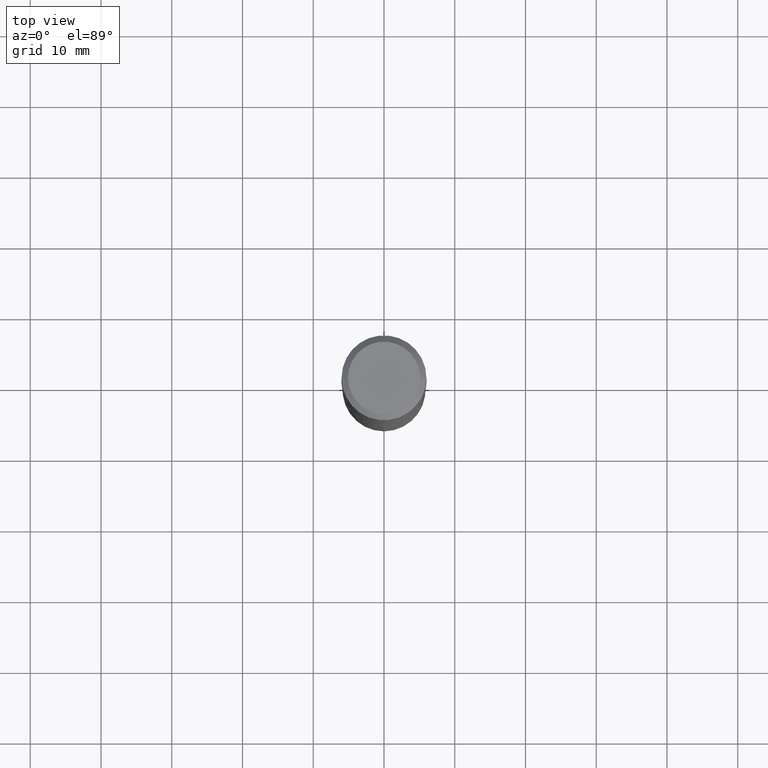
[diagram: clean part render]
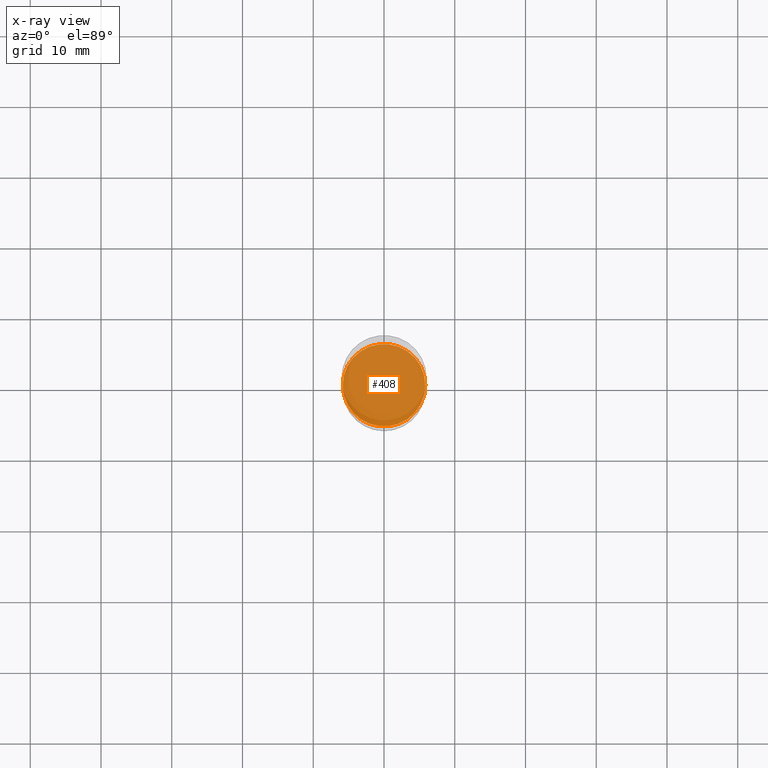
[diagram: x-ray — body ghosted, one internal face saturated and labeled with its STEP entity id]
A machine part, top view, then the same camera in x-ray: the body is ghosted and one INTERNAL B-rep face — a face not visible from any outside direction — is saturated and labeled: STEP entity #408.
In plain terms, the highlighted planar face has unit normal (-0, 0, 1).
Its self-contained STEP definition (entity closure, byte-faithful):
#65 = CARTESIAN_POINT ( 'NONE',  ( 5.969144809017300159E-29, -8.522356799982234543E-15, -2.440900000000000070 ) ) ;
#69 = DIRECTION ( 'NONE',  ( 1.000000000000000000, -6.982962677686265922E-15, 4.876176775795935793E-29 ) ) ;
#81 = VERTEX_POINT ( 'NONE', #350 ) ;
#105 = AXIS2_PLACEMENT_3D ( 'NONE', #460, #283, #69 ) ;
#148 = DIRECTION ( 'NONE',  ( 1.000000000000000000, -6.982962677686267499E-15, 0.000000000000000000 ) ) ;
#150 = EDGE_CURVE ( 'NONE', #81, #159, #310, .T. ) ;
#159 = VERTEX_POINT ( 'NONE', #354 ) ;
#160 = CARTESIAN_POINT ( 'NONE',  ( 5.969144809017300159E-29, -8.522356799982234543E-15, -2.440900000000000070 ) ) ;
#165 = AXIS2_PLACEMENT_3D ( 'NONE', #65, #262, #228 ) ;
#166 = ORIENTED_EDGE ( 'NONE', *, *, #423, .F. ) ;
#228 = DIRECTION ( 'NONE',  ( 1.000000000000000000, -6.982962677686267499E-15, 0.000000000000000000 ) ) ;
#232 = ORIENTED_EDGE ( 'NONE', *, *, #150, .F. ) ;
#262 = DIRECTION ( 'NONE',  ( -2.445468806185136597E-29, 3.491481338843145583E-15, 1.000000000000000000 ) ) ;
#283 = DIRECTION ( 'NONE',  ( -2.438088387897960049E-29, 3.491481338843145188E-15, 1.000000000000000000 ) ) ;
#310 = CIRCLE ( 'NONE', #165, 0.2298000000000000043 ) ;
#350 = CARTESIAN_POINT ( 'NONE',  ( 0.2298000000000000043, -1.012704162331453900E-14, -2.440900000000000070 ) ) ;
#354 = CARTESIAN_POINT ( 'NONE',  ( -0.2298000000000000043, -6.886880366031413874E-15, -2.440900000000000070 ) ) ;
#356 = PLANE ( 'NONE',  #105 ) ;
#369 = AXIS2_PLACEMENT_3D ( 'NONE', #160, #487, #148 ) ;
#391 = FACE_OUTER_BOUND ( 'NONE', #443, .T. ) ;
#401 = CIRCLE ( 'NONE', #369, 0.2298000000000000043 ) ;
#408 = ADVANCED_FACE ( 'NONE', ( #391 ), #356, .F. ) ;
#423 = EDGE_CURVE ( 'NONE', #159, #81, #401, .T. ) ;
#443 = EDGE_LOOP ( 'NONE', ( #232, #166 ) ) ;
#460 = CARTESIAN_POINT ( 'NONE',  ( 3.942879941713351424E-29, -1.142408341779559468E-14, -2.440900000000000070 ) ) ;
#487 = DIRECTION ( 'NONE',  ( -2.445468806185136597E-29, 3.491481338843145583E-15, 1.000000000000000000 ) ) ;